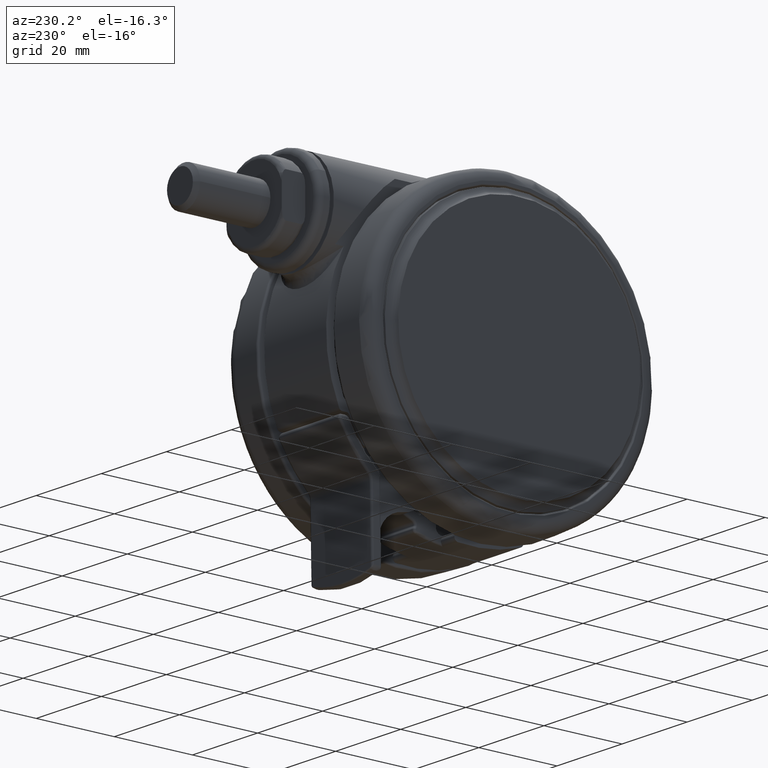
[diagram: clean part render]
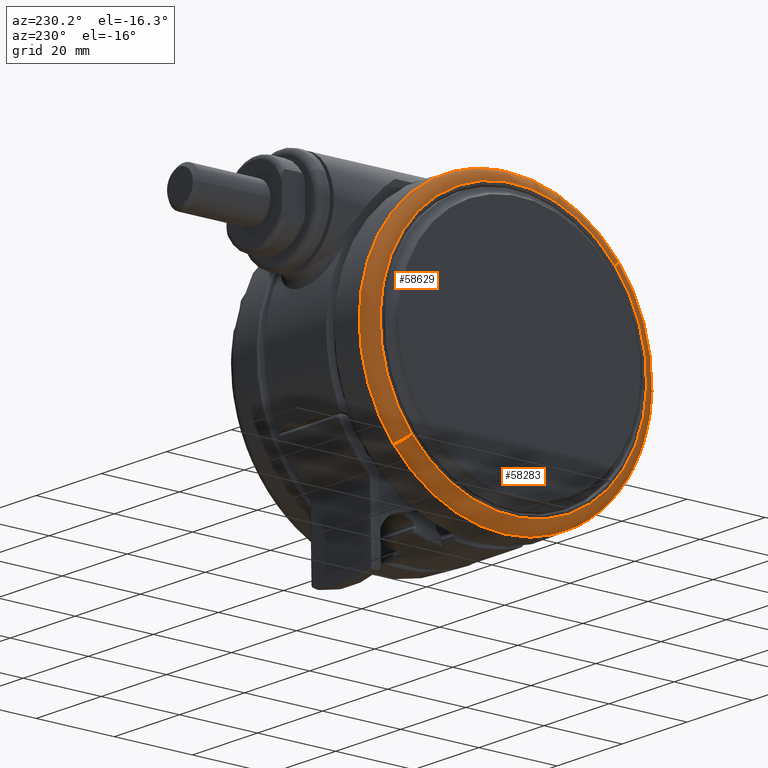
[diagram: same view with one multi-face feature highlighted, each face labeled with its STEP entity id]
A machine part, auxiliary view. The highlighted faces form ONE feature: a constant-radius fillet chain: 2 tangent blend faces with common blend radius 3 mm. The faces share edges in the B-rep.
Their STEP definitions:
[1] entity #58629 (Torus):
#1243 = AXIS2_PLACEMENT_3D ( 'NONE', #50934, #16824, #56632 ) ;
#4420 = DIRECTION ( 'NONE',  ( -0.9984046928826705300, 0.05646298991251030200, 0.0000000000000000000 ) ) ;
#8933 = CARTESIAN_POINT ( 'NONE',  ( 34.07595144274871000, -1.927104425977701300, -45.89999999999987100 ) ) ;
#16824 = DIRECTION ( 'NONE',  ( -0.05646298991251032200, -0.9984046928826707500, -0.0000000000000000000 ) ) ;
#17213 = EDGE_CURVE ( 'NONE', #37373, #35826, #28683, .T. ) ;
#20266 = CARTESIAN_POINT ( 'NONE',  ( -2.081668171172168500E-014, 6.938893903907228400E-015, -43.05700786872869700 ) ) ;
#23185 = ORIENTED_EDGE ( 'NONE', *, *, #17213, .T. ) ;
#25991 = DIRECTION ( 'NONE',  ( -0.9984046928826706400, 0.05646298991251031500, 0.0000000000000000000 ) ) ;
#26017 = CIRCLE ( 'NONE', #45223, 34.13039991264667300 ) ;
#27626 = ORIENTED_EDGE ( 'NONE', *, *, #41910, .F. ) ;
#28683 = CIRCLE ( 'NONE', #70982, 37.12628851691038500 ) ;
#29201 = DIRECTION ( 'NONE',  ( 0.05646298991251019700, 0.9984046928826707500, 0.0000000000000000000 ) ) ;
#30089 = DIRECTION ( 'NONE',  ( 0.0000000000000000000, 0.0000000000000000000, -1.000000000000000000 ) ) ;
#35826 = VERTEX_POINT ( 'NONE', #59832 ) ;
#37373 = VERTEX_POINT ( 'NONE', #55875 ) ;
#37378 = EDGE_LOOP ( 'NONE', ( #23185, #72400, #27626, #56069 ) ) ;
#38295 = CARTESIAN_POINT ( 'NONE',  ( -2.081668171172168500E-014, 6.938893903907228400E-015, -42.89999999999989200 ) ) ;
#38421 = VERTEX_POINT ( 'NONE', #43633 ) ;
#40715 = EDGE_CURVE ( 'NONE', #37373, #38421, #71749, .T. ) ;
#41910 = EDGE_CURVE ( 'NONE', #38421, #60170, #26017, .T. ) ;
#43633 = CARTESIAN_POINT ( 'NONE',  ( -34.07595144274875300, 1.927104425977719000, -45.89999999999987100 ) ) ;
#45223 = AXIS2_PLACEMENT_3D ( 'NONE', #64140, #30089, #69847 ) ;
#47315 = FACE_OUTER_BOUND ( 'NONE', #37378, .T. ) ;
#50934 = CARTESIAN_POINT ( 'NONE',  ( -34.07595144274875300, 1.927104425977719000, -42.89999999999989200 ) ) ;
#54953 = EDGE_CURVE ( 'NONE', #35826, #60170, #71832, .T. ) ;
#55875 = CARTESIAN_POINT ( 'NONE',  ( -37.06706068459935500, 2.096261254019265300, -43.05700786872869700 ) ) ;
#56069 = ORIENTED_EDGE ( 'NONE', *, *, #40715, .F. ) ;
#56632 = DIRECTION ( 'NONE',  ( 0.9984046928826705300, -0.05646298991251026700, 0.0000000000000000000 ) ) ;
#57914 = AXIS2_PLACEMENT_3D ( 'NONE', #38295, #66921, #4420 ) ;
#58629 = ADVANCED_FACE ( 'NONE', ( #47315 ), #60652, .T. ) ;
#59832 = CARTESIAN_POINT ( 'NONE',  ( 37.06706068459931200, -2.096261254019247100, -43.05700786872869700 ) ) ;
#60044 = DIRECTION ( 'NONE',  ( 0.0000000000000000000, 0.0000000000000000000, -1.000000000000000000 ) ) ;
#60170 = VERTEX_POINT ( 'NONE', #8933 ) ;
#60652 = TOROIDAL_SURFACE ( 'NONE', #57914, 34.13039991264668100, 2.999999999999988000 ) ;
#63268 = CARTESIAN_POINT ( 'NONE',  ( 34.07595144274871000, -1.927104425977701000, -42.89999999999989200 ) ) ;
#64140 = CARTESIAN_POINT ( 'NONE',  ( -2.081668171172168500E-014, 6.938893903907228400E-015, -45.89999999999987100 ) ) ;
#65334 = AXIS2_PLACEMENT_3D ( 'NONE', #63268, #29201, #68970 ) ;
#66921 = DIRECTION ( 'NONE',  ( 0.0000000000000000000, 0.0000000000000000000, -1.000000000000000000 ) ) ;
#68970 = DIRECTION ( 'NONE',  ( -0.9984046928826706400, 0.05646298991251020400, 0.0000000000000000000 ) ) ;
#69847 = DIRECTION ( 'NONE',  ( -0.9984046928826706400, 0.05646298991251031500, 0.0000000000000000000 ) ) ;
#70982 = AXIS2_PLACEMENT_3D ( 'NONE', #20266, #60044, #25991 ) ;
#71749 = CIRCLE ( 'NONE', #1243, 2.999999999999989300 ) ;
#71832 = CIRCLE ( 'NONE', #65334, 2.999999999999988900 ) ;
#72400 = ORIENTED_EDGE ( 'NONE', *, *, #54953, .T. ) ;
[2] entity #58283 (Torus):
#1243 = AXIS2_PLACEMENT_3D ( 'NONE', #50934, #16824, #56632 ) ;
#1968 = ORIENTED_EDGE ( 'NONE', *, *, #54953, .F. ) ;
#6267 = CARTESIAN_POINT ( 'NONE',  ( -2.081668171172168500E-014, 6.938893903907228400E-015, -43.05700786872869700 ) ) ;
#6382 = TOROIDAL_SURFACE ( 'NONE', #9722, 34.13039991264668100, 2.999999999999988000 ) ;
#8933 = CARTESIAN_POINT ( 'NONE',  ( 34.07595144274871000, -1.927104425977701300, -45.89999999999987100 ) ) ;
#9294 = DIRECTION ( 'NONE',  ( 0.0000000000000000000, 0.0000000000000000000, -1.000000000000000000 ) ) ;
#9722 = AXIS2_PLACEMENT_3D ( 'NONE', #20545, #9294, #26508 ) ;
#11986 = DIRECTION ( 'NONE',  ( -0.9984046928826706400, 0.05646298991251031500, 0.0000000000000000000 ) ) ;
#15062 = AXIS2_PLACEMENT_3D ( 'NONE', #6267, #46082, #11986 ) ;
#16824 = DIRECTION ( 'NONE',  ( -0.05646298991251032200, -0.9984046928826707500, -0.0000000000000000000 ) ) ;
#20545 = CARTESIAN_POINT ( 'NONE',  ( -2.081668171172168500E-014, 6.938893903907228400E-015, -42.89999999999989200 ) ) ;
#21575 = FACE_OUTER_BOUND ( 'NONE', #53281, .T. ) ;
#23245 = EDGE_CURVE ( 'NONE', #35826, #37373, #68835, .T. ) ;
#24564 = CARTESIAN_POINT ( 'NONE',  ( -2.081668171172168500E-014, 6.938893903907228400E-015, -45.89999999999987100 ) ) ;
#26508 = DIRECTION ( 'NONE',  ( -0.9984046928826705300, 0.05646298991251030200, 0.0000000000000000000 ) ) ;
#29201 = DIRECTION ( 'NONE',  ( 0.05646298991251019700, 0.9984046928826707500, 0.0000000000000000000 ) ) ;
#30233 = CIRCLE ( 'NONE', #64407, 34.13039991264667300 ) ;
#30322 = DIRECTION ( 'NONE',  ( -0.9984046928826706400, 0.05646298991251031500, 0.0000000000000000000 ) ) ;
#30371 = ORIENTED_EDGE ( 'NONE', *, *, #73515, .F. ) ;
#35826 = VERTEX_POINT ( 'NONE', #59832 ) ;
#37373 = VERTEX_POINT ( 'NONE', #55875 ) ;
#38421 = VERTEX_POINT ( 'NONE', #43633 ) ;
#40715 = EDGE_CURVE ( 'NONE', #37373, #38421, #71749, .T. ) ;
#43633 = CARTESIAN_POINT ( 'NONE',  ( -34.07595144274875300, 1.927104425977719000, -45.89999999999987100 ) ) ;
#46082 = DIRECTION ( 'NONE',  ( 0.0000000000000000000, 0.0000000000000000000, -1.000000000000000000 ) ) ;
#50413 = ORIENTED_EDGE ( 'NONE', *, *, #40715, .T. ) ;
#50934 = CARTESIAN_POINT ( 'NONE',  ( -34.07595144274875300, 1.927104425977719000, -42.89999999999989200 ) ) ;
#52119 = ORIENTED_EDGE ( 'NONE', *, *, #23245, .T. ) ;
#53281 = EDGE_LOOP ( 'NONE', ( #1968, #52119, #50413, #30371 ) ) ;
#54953 = EDGE_CURVE ( 'NONE', #35826, #60170, #71832, .T. ) ;
#55875 = CARTESIAN_POINT ( 'NONE',  ( -37.06706068459935500, 2.096261254019265300, -43.05700786872869700 ) ) ;
#56632 = DIRECTION ( 'NONE',  ( 0.9984046928826705300, -0.05646298991251026700, 0.0000000000000000000 ) ) ;
#58283 = ADVANCED_FACE ( 'NONE', ( #21575 ), #6382, .T. ) ;
#59832 = CARTESIAN_POINT ( 'NONE',  ( 37.06706068459931200, -2.096261254019247100, -43.05700786872869700 ) ) ;
#60170 = VERTEX_POINT ( 'NONE', #8933 ) ;
#63268 = CARTESIAN_POINT ( 'NONE',  ( 34.07595144274871000, -1.927104425977701000, -42.89999999999989200 ) ) ;
#64386 = DIRECTION ( 'NONE',  ( 0.0000000000000000000, 0.0000000000000000000, -1.000000000000000000 ) ) ;
#64407 = AXIS2_PLACEMENT_3D ( 'NONE', #24564, #64386, #30322 ) ;
#65334 = AXIS2_PLACEMENT_3D ( 'NONE', #63268, #29201, #68970 ) ;
#68835 = CIRCLE ( 'NONE', #15062, 37.12628851691038500 ) ;
#68970 = DIRECTION ( 'NONE',  ( -0.9984046928826706400, 0.05646298991251020400, 0.0000000000000000000 ) ) ;
#71749 = CIRCLE ( 'NONE', #1243, 2.999999999999989300 ) ;
#71832 = CIRCLE ( 'NONE', #65334, 2.999999999999988900 ) ;
#73515 = EDGE_CURVE ( 'NONE', #60170, #38421, #30233, .T. ) ;